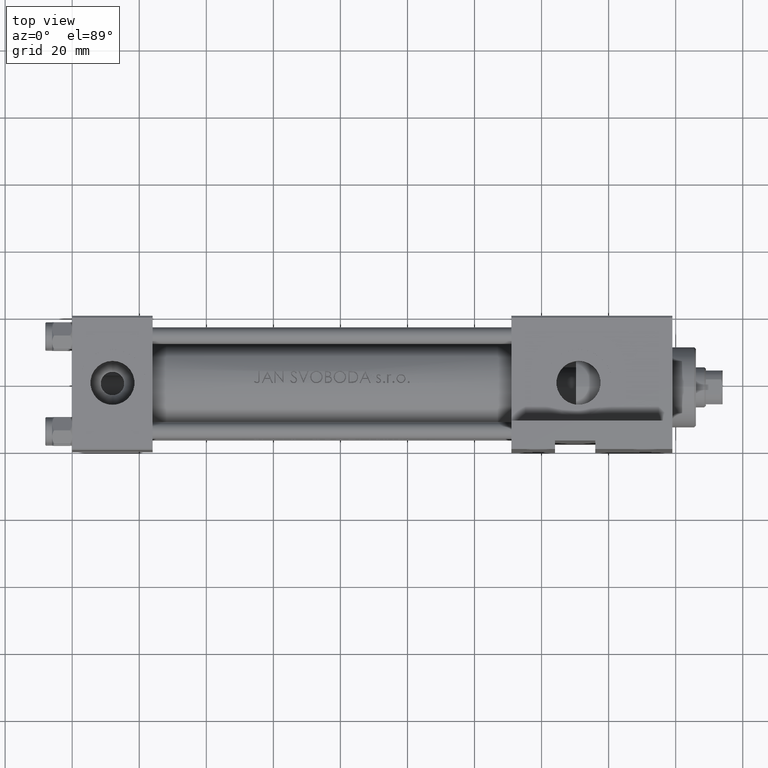
[diagram: clean part render]
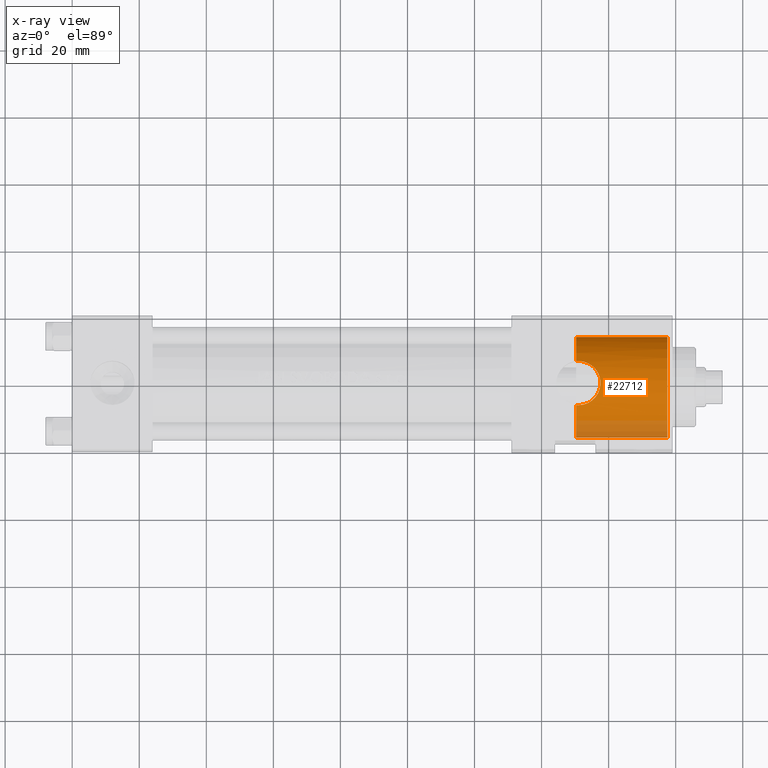
[diagram: x-ray — body ghosted, one internal face saturated and labeled with its STEP entity id]
A machine part, top view, then the same camera in x-ray: the body is ghosted and one INTERNAL B-rep face — a face not visible from any outside direction — is saturated and labeled: STEP entity #22712.
In plain terms, the highlighted cylindrical surface (partial cylindrical patch) has radius 15 mm, axis along (1, 0, 0).
Its self-contained STEP definition (entity closure, byte-faithful):
#72 = CARTESIAN_POINT ( 'NONE',  ( 157.5349899413855610, -15.00023639049713253, -0.7988671542189782482 ) ) ;
#88 = ORIENTED_EDGE ( 'NONE', *, *, #47387, .T. ) ;
#167 = CARTESIAN_POINT ( 'NONE',  ( 150.2999999999999829, 0.000000000000000000, -1.000000000000000888 ) ) ;
#308 = CARTESIAN_POINT ( 'NONE',  ( 153.1381124013903730, -13.13972333735588727, 6.237569277628214337 ) ) ;
#663 = ORIENTED_EDGE ( 'NONE', *, *, #43420, .T. ) ;
#832 = VERTEX_POINT ( 'NONE', #34660 ) ;
#2037 = EDGE_CURVE ( 'NONE', #13434, #14917, #31011, .T. ) ;
#2978 = CARTESIAN_POINT ( 'NONE',  ( 156.6738369720416131, -14.35736338889291019, 3.359171981963600562 ) ) ;
#3087 = DIRECTION ( 'NONE',  ( 0.000000000000000000, 0.000000000000000000, 1.000000000000000000 ) ) ;
#3190 = ORIENTED_EDGE ( 'NONE', *, *, #35817, .T. ) ;
#3214 = CARTESIAN_POINT ( 'NONE',  ( 157.2597835887656288, -14.96702597749744434, -2.074533036098434646 ) ) ;
#3685 = CARTESIAN_POINT ( 'NONE',  ( 151.8687533917550923, -13.94089526584916605, -6.537155886361643908 ) ) ;
#3696 = VERTEX_POINT ( 'NONE', #22236 ) ;
#3922 = CARTESIAN_POINT ( 'NONE',  ( 157.5049471806766803, -15.00151096702658826, -1.014512858896946534 ) ) ;
#3925 = DIRECTION ( 'NONE',  ( 0.000000000000000000, 0.000000000000000000, -1.000000000000000000 ) ) ;
#4634 = CARTESIAN_POINT ( 'NONE',  ( 151.0000000000000000, -12.94386341089861148, 6.580000000000016058 ) ) ;
#4658 = ORIENTED_EDGE ( 'NONE', *, *, #4976, .T. ) ;
#4976 = EDGE_CURVE ( 'NONE', #6909, #14917, #41311, .T. ) ;
#5817 = VECTOR ( 'NONE', #25296, 1000.000000000000000 ) ;
#6459 = B_SPLINE_CURVE_WITH_KNOTS ( 'NONE', 3,
 ( #10220, #40087, #3685, #24893, #46825, #39612, #25594, #7309, #7542, #36467, #6605, #22218, #36932, #17662, #14068, #18373, #33073, #3214, #32365, #3922, #72, #28751, #25367, #7075, #14758, #39846, #35993, #18604, #36232, #29451, #2978, #21754, #6842, #43456, #47058, #10459, #26528, #308, #18840, #8013, #15940, #4634 ),
 .UNSPECIFIED., .F., .F.,
 ( 4, 2, 2, 2, 2, 2, 2, 2, 2, 2, 2, 2, 2, 2, 2, 2, 2, 2, 2, 2, 4 ),
 ( 0.0006965638075759768809, 0.002001528455517305981, 0.003306493103458635514, 0.003958975427429338445, 0.004611457751400040508, 0.005916422399341446370, 0.006568904723312176189, 0.007221387047282907742, 0.008526351695224367380, 0.009831316343165827018, 0.01048379866713656551, 0.01113628099110730400, 0.01244124563904877925, 0.01309372796301951775, 0.01374621028699025797, 0.01505117493493173496, 0.01635613958287321021, 0.01766110423081469066, 0.01896606887875616418, 0.02027103352669764463, 0.02157599817463912162 ),
 .UNSPECIFIED. ) ;
#6605 = CARTESIAN_POINT ( 'NONE',  ( 155.3708777481616607, -14.47745739044342095, -4.937343295061574544 ) ) ;
#6707 = DIRECTION ( 'NONE',  ( 1.000000000000000000, 0.000000000000000000, 0.000000000000000000 ) ) ;
#6842 = CARTESIAN_POINT ( 'NONE',  ( 155.9267424430817925, -14.00495884624851506, 4.381684616014855038 ) ) ;
#6909 = VERTEX_POINT ( 'NONE', #22707 ) ;
#7075 = CARTESIAN_POINT ( 'NONE',  ( 157.5744296126713664, -14.92981285423252835, 0.5141884850285791675 ) ) ;
#7150 = AXIS2_PLACEMENT_3D ( 'NONE', #43914, #25117, #28496 ) ;
#7309 = CARTESIAN_POINT ( 'NONE',  ( 154.3189673186315360, -14.24975467475567825, -5.685756420153623480 ) ) ;
#7542 = CARTESIAN_POINT ( 'NONE',  ( 154.5054636800034018, -14.28659246824342688, -5.572662118825794764 ) ) ;
#8013 = CARTESIAN_POINT ( 'NONE',  ( 151.8703566362067363, -12.96962219536296601, 6.536476817755258573 ) ) ;
#8172 = CARTESIAN_POINT ( 'NONE',  ( 150.2999999999999829, 0.000000000000000000, -16.00000000000000000 ) ) ;
#8424 = EDGE_LOOP ( 'NONE', ( #40113, #42488, #663, #19493, #30403, #3190, #88, #4658 ) ) ;
#10220 = CARTESIAN_POINT ( 'NONE',  ( 151.0000000000000000, -13.92349094157064648, -6.580000000000016058 ) ) ;
#10459 = CARTESIAN_POINT ( 'NONE',  ( 154.2981701168886843, -13.41835060742347174, 5.709334118205719122 ) ) ;
#10858 = LINE ( 'NONE', #28198, #5817 ) ;
#11000 = AXIS2_PLACEMENT_3D ( 'NONE', #13461, #6707, #3087 ) ;
#11970 = DIRECTION ( 'NONE',  ( 0.000000000000000000, 0.000000000000000000, -1.000000000000000000 ) ) ;
#12107 = FACE_OUTER_BOUND ( 'NONE', #8424, .T. ) ;
#12494 = EDGE_CURVE ( 'NONE', #13434, #3696, #10858, .T. ) ;
#13434 = VERTEX_POINT ( 'NONE', #14731 ) ;
#13461 = CARTESIAN_POINT ( 'NONE',  ( 177.4999999999999716, 0.000000000000000000, -1.000000000000000888 ) ) ;
#13974 = VERTEX_POINT ( 'NONE', #34779 ) ;
#14068 = CARTESIAN_POINT ( 'NONE',  ( 156.3715167783949767, -14.73623975893353411, -3.806502977433124713 ) ) ;
#14731 = CARTESIAN_POINT ( 'NONE',  ( 150.2999999999999829, 1.836970198721029589E-15, 13.99999999999999822 ) ) ;
#14758 = CARTESIAN_POINT ( 'NONE',  ( 157.5262619954826562, -14.87965828697675263, 0.9439843966803175279 ) ) ;
#14917 = VERTEX_POINT ( 'NONE', #37744 ) ;
#15589 = CIRCLE ( 'NONE', #11000, 15.00000000000000000 ) ;
#15940 = CARTESIAN_POINT ( 'NONE',  ( 151.4392122453838567, -12.94386341089861503, 6.580000000000018723 ) ) ;
#16389 = AXIS2_PLACEMENT_3D ( 'NONE', #167, #37743, #11970 ) ;
#17662 = CARTESIAN_POINT ( 'NONE',  ( 156.2441296143378224, -14.70196139133041946, -3.980243815275441577 ) ) ;
#18373 = CARTESIAN_POINT ( 'NONE',  ( 156.7271808417479519, -14.83200468947066319, -3.268153802540142649 ) ) ;
#18604 = CARTESIAN_POINT ( 'NONE',  ( 157.2051483655279753, -14.65624107651341390, 2.199773177191484574 ) ) ;
#18840 = CARTESIAN_POINT ( 'NONE',  ( 152.7175448203071824, -13.06688074960412216, 6.366560268581209492 ) ) ;
#19493 = ORIENTED_EDGE ( 'NONE', *, *, #22779, .F. ) ;
#20294 = LINE ( 'NONE', #34992, #22132 ) ;
#20608 = AXIS2_PLACEMENT_3D ( 'NONE', #22220, #36934, #3925 ) ;
#21754 = CARTESIAN_POINT ( 'NONE',  ( 156.1953745110316447, -14.12556139585159620, 4.060116510623666741 ) ) ;
#22132 = VECTOR ( 'NONE', #41743, 1000.000000000000000 ) ;
#22218 = CARTESIAN_POINT ( 'NONE',  ( 155.8256392607727321, -14.59197228780391420, -4.478391284887376145 ) ) ;
#22220 = CARTESIAN_POINT ( 'NONE',  ( 150.2999999999999829, 0.000000000000000000, -1.000000000000000888 ) ) ;
#22236 = CARTESIAN_POINT ( 'NONE',  ( 177.4999999999999716, 1.836970198721029589E-15, 13.99999999999999822 ) ) ;
#22707 = CARTESIAN_POINT ( 'NONE',  ( 151.0000000000000000, -12.94386341089861148, 6.580000000000016058 ) ) ;
#22712 = ADVANCED_FACE ( 'NONE', ( #12107 ), #29454, .F. ) ;
#22779 = EDGE_CURVE ( 'NONE', #33376, #13974, #20294, .T. ) ;
#24893 = CARTESIAN_POINT ( 'NONE',  ( 152.7295119398762893, -14.00850900728111981, -6.363798235967562889 ) ) ;
#25117 = DIRECTION ( 'NONE',  ( 1.000000000000000000, 0.000000000000000000, 0.000000000000000000 ) ) ;
#25296 = DIRECTION ( 'NONE',  ( 1.000000000000000000, -0.000000000000000000, -0.000000000000000000 ) ) ;
#25367 = CARTESIAN_POINT ( 'NONE',  ( 157.5821084598600237, -14.97701657026372501, -0.1415162717349364718 ) ) ;
#25594 = CARTESIAN_POINT ( 'NONE',  ( 153.9376354969070348, -14.18033197428407810, -5.891830599972657012 ) ) ;
#26021 = CARTESIAN_POINT ( 'NONE',  ( 151.0000000000000000, -12.94386341089861148, 6.580000000000016058 ) ) ;
#26528 = CARTESIAN_POINT ( 'NONE',  ( 153.9264804168203113, -13.31549965510339106, 5.908849930752890778 ) ) ;
#27266 = CARTESIAN_POINT ( 'NONE',  ( 150.2999999999999829, -13.93839732605630388, -6.542660009506852781 ) ) ;
#28198 = CARTESIAN_POINT ( 'NONE',  ( 150.2999999999999829, 1.836970198721029589E-15, 13.99999999999999822 ) ) ;
#28496 = DIRECTION ( 'NONE',  ( 0.000000000000000000, 0.000000000000000000, -1.000000000000000000 ) ) ;
#28751 = CARTESIAN_POINT ( 'NONE',  ( 157.5736260922921872, -14.98805174683067953, -0.3629356180319599501 ) ) ;
#29451 = CARTESIAN_POINT ( 'NONE',  ( 156.8787885192681983, -14.46625875797156979, 2.986143950077838394 ) ) ;
#29454 = CYLINDRICAL_SURFACE ( 'NONE', #20608, 15.00000000000000000 ) ;
#30403 = ORIENTED_EDGE ( 'NONE', *, *, #43618, .F. ) ;
#31011 = CIRCLE ( 'NONE', #16389, 15.00000000000000000 ) ;
#31105 = CARTESIAN_POINT ( 'NONE',  ( 150.2999999999999829, -13.93839732605630388, -6.542660009506852781 ) ) ;
#31123 = CARTESIAN_POINT ( 'NONE',  ( 151.0000000000000000, -13.92349094157064648, -6.580000000000016058 ) ) ;
#32365 = CARTESIAN_POINT ( 'NONE',  ( 157.3833542692444212, -14.99178421008259221, -1.654655532235906445 ) ) ;
#33073 = CARTESIAN_POINT ( 'NONE',  ( 156.9292563417510280, -14.88647721061454732, -2.886606507622615947 ) ) ;
#33376 = VERTEX_POINT ( 'NONE', #8172 ) ;
#33512 = CARTESIAN_POINT ( 'NONE',  ( 150.5324978063616186, -12.95118691542436551, 6.567534978436411208 ) ) ;
#34660 = CARTESIAN_POINT ( 'NONE',  ( 151.0000000000000000, -13.92349094157064648, -6.580000000000016058 ) ) ;
#34779 = CARTESIAN_POINT ( 'NONE',  ( 177.4999999999999716, 0.000000000000000000, -16.00000000000000000 ) ) ;
#34992 = CARTESIAN_POINT ( 'NONE',  ( 150.2999999999999829, 0.000000000000000000, -16.00000000000000000 ) ) ;
#35817 = EDGE_CURVE ( 'NONE', #43012, #832, #39470, .T. ) ;
#35993 = CARTESIAN_POINT ( 'NONE',  ( 157.3358205993226022, -14.73994095030600171, 1.788923028669911375 ) ) ;
#36232 = CARTESIAN_POINT ( 'NONE',  ( 157.1303715563460628, -14.61096465312830439, 2.400030649254234039 ) ) ;
#36467 = CARTESIAN_POINT ( 'NONE',  ( 155.0411271395585686, -14.39909082229038439, -5.210704966854025955 ) ) ;
#36932 = CARTESIAN_POINT ( 'NONE',  ( 155.9712578428078018, -14.62983759305999953, -4.316228874994349596 ) ) ;
#36934 = DIRECTION ( 'NONE',  ( 1.000000000000000000, -0.000000000000000000, -0.000000000000000000 ) ) ;
#37743 = DIRECTION ( 'NONE',  ( 1.000000000000000000, 0.000000000000000000, 0.000000000000000000 ) ) ;
#37744 = CARTESIAN_POINT ( 'NONE',  ( 150.2999999999999829, -12.96565771494011265, 6.542660009506851004 ) ) ;
#39470 = B_SPLINE_CURVE_WITH_KNOTS ( 'NONE', 3,
 ( #27266, #41985, #42220, #31123 ),
 .UNSPECIFIED., .F., .F.,
 ( 4, 4 ),
 ( 0.000000000000000000, 0.0006965638075759768809 ),
 .UNSPECIFIED. ) ;
#39612 = CARTESIAN_POINT ( 'NONE',  ( 153.7428249694657438, -14.14771836893921453, -5.984969253139967194 ) ) ;
#39846 = CARTESIAN_POINT ( 'NONE',  ( 157.3915985170250735, -14.77832704599567748, 1.578153649324618435 ) ) ;
#40087 = CARTESIAN_POINT ( 'NONE',  ( 151.4356985834796205, -13.92349094157063938, -6.580000000000014282 ) ) ;
#40113 = ORIENTED_EDGE ( 'NONE', *, *, #2037, .F. ) ;
#41311 = B_SPLINE_CURVE_WITH_KNOTS ( 'NONE', 3,
 ( #26021, #44129, #33512, #44596 ),
 .UNSPECIFIED., .F., .F.,
 ( 4, 4 ),
 ( 0.02157599817463912162, 0.02226740356188605316 ),
 .UNSPECIFIED. ) ;
#41743 = DIRECTION ( 'NONE',  ( 1.000000000000000000, -0.000000000000000000, -0.000000000000000000 ) ) ;
#41985 = CARTESIAN_POINT ( 'NONE',  ( 150.5341082140016056, -13.92843717928244551, -6.567707276148095907 ) ) ;
#42220 = CARTESIAN_POINT ( 'NONE',  ( 150.7674328842986142, -13.92349094157064471, -6.580000000000016946 ) ) ;
#42488 = ORIENTED_EDGE ( 'NONE', *, *, #12494, .T. ) ;
#43012 = VERTEX_POINT ( 'NONE', #31105 ) ;
#43420 = EDGE_CURVE ( 'NONE', #3696, #13974, #15589, .T. ) ;
#43456 = CARTESIAN_POINT ( 'NONE',  ( 155.3311883376094613, -13.76394772769290498, 4.971192890930814734 ) ) ;
#43618 = EDGE_CURVE ( 'NONE', #43012, #33376, #44825, .T. ) ;
#43914 = CARTESIAN_POINT ( 'NONE',  ( 150.2999999999999829, 0.000000000000000000, -1.000000000000000888 ) ) ;
#44129 = CARTESIAN_POINT ( 'NONE',  ( 150.7672935331372912, -12.94386341089860792, 6.580000000000014282 ) ) ;
#44596 = CARTESIAN_POINT ( 'NONE',  ( 150.2999999999999829, -12.96565771494011265, 6.542660009506851004 ) ) ;
#44825 = CIRCLE ( 'NONE', #7150, 15.00000000000000000 ) ;
#46825 = CARTESIAN_POINT ( 'NONE',  ( 153.1459160792034311, -14.05788647029877403, -6.235192641581944528 ) ) ;
#47058 = CARTESIAN_POINT ( 'NONE',  ( 155.0003554952819798, -13.64232575446902196, 5.241333618900078761 ) ) ;
#47387 = EDGE_CURVE ( 'NONE', #832, #6909, #6459, .T. ) ;